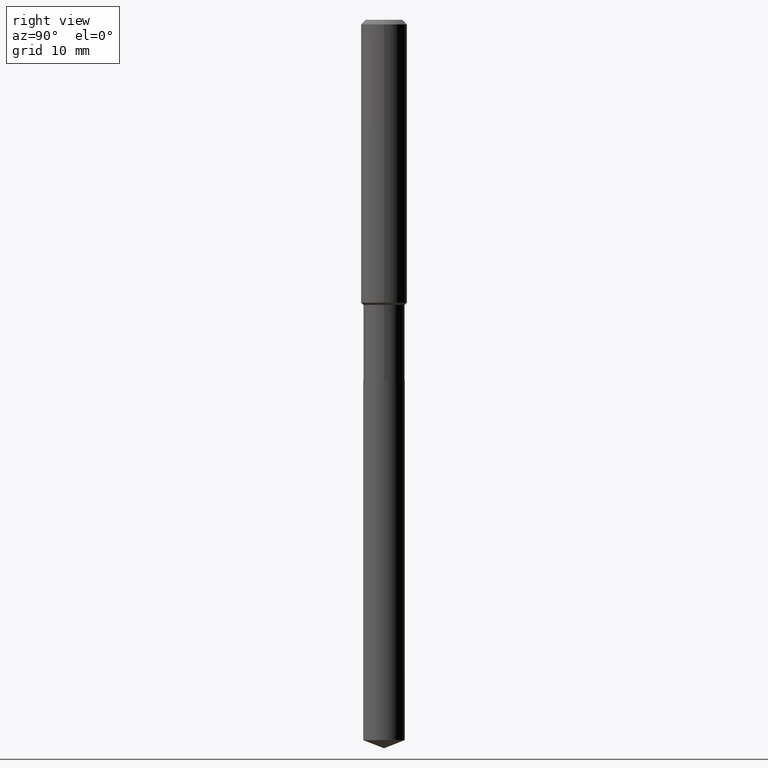
[diagram: clean part render]
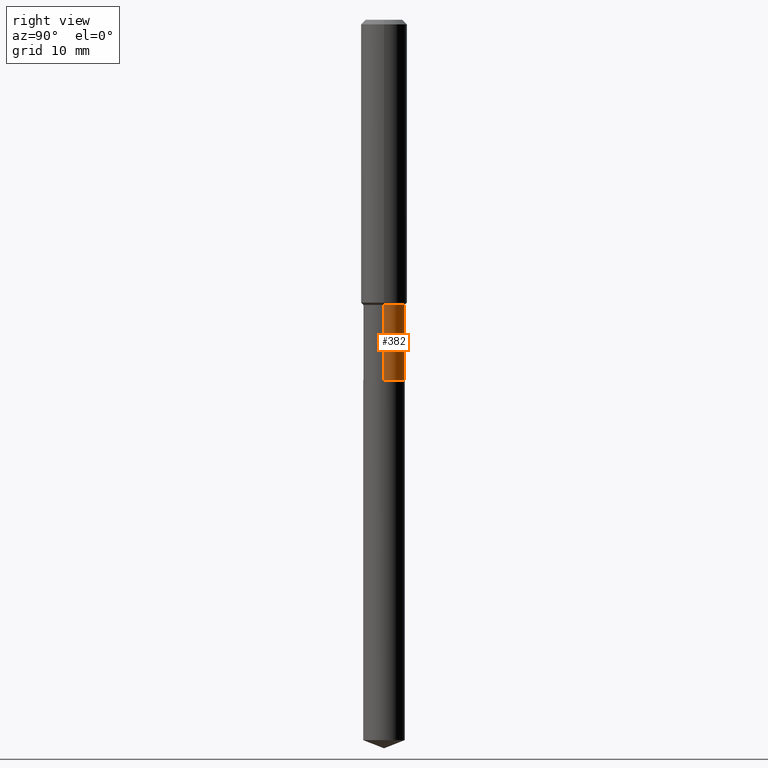
[diagram: same view with one face highlighted and labeled with its STEP entity id]
A machine part, right view. The second image highlights one B-rep face of the part: STEP entity #382.
In plain terms, the highlighted cylindrical surface (edge-blend (fillet) strip) has radius 2.7 mm, axis along (-0, 0, 1).
Its self-contained STEP definition (entity closure, byte-faithful):
#4 = VERTEX_POINT ( 'NONE', #208 ) ;
#9 = ORIENTED_EDGE ( 'NONE', *, *, #145, .F. ) ;
#34 = FACE_OUTER_BOUND ( 'NONE', #489, .T. ) ;
#44 = ORIENTED_EDGE ( 'NONE', *, *, #197, .T. ) ;
#76 = CYLINDRICAL_SURFACE ( 'NONE', #487, 0.1062999999999999640 ) ;
#123 = CARTESIAN_POINT ( 'NONE',  ( 0.1062999999999999640, -7.422889326380500401E-16, 5.183375912671078649E-30 ) ) ;
#142 = VERTEX_POINT ( 'NONE', #354 ) ;
#145 = EDGE_CURVE ( 'NONE', #142, #312, #384, .T. ) ;
#180 = ORIENTED_EDGE ( 'NONE', *, *, #361, .T. ) ;
#191 = DIRECTION ( 'NONE',  ( 1.000000000000000000, -6.982962677686268288E-15, 4.876176775795936353E-29 ) ) ;
#197 = EDGE_CURVE ( 'NONE', #306, #4, #408, .T. ) ;
#204 = DIRECTION ( 'NONE',  ( -2.445468806185136877E-29, 3.491481338843145188E-15, 1.000000000000000000 ) ) ;
#208 = CARTESIAN_POINT ( 'NONE',  ( -0.1062999999999999501, -5.030252224417050365E-15, -1.464200000000000390 ) ) ;
#217 = CARTESIAN_POINT ( 'NONE',  ( -0.1062999999999999640, 7.553069281129862415E-16, -5.228828000940962955E-30 ) ) ;
#219 = CARTESIAN_POINT ( 'NONE',  ( 0.1062999999999999501, -5.854515908972185504E-15, -1.464200000000000390 ) ) ;
#251 = DIRECTION ( 'NONE',  ( -2.445468806185136597E-29, 3.491481338843145583E-15, 1.000000000000000000 ) ) ;
#285 = DIRECTION ( 'NONE',  ( 1.000000000000000000, -6.982962677686269077E-15, 0.000000000000000000 ) ) ;
#288 = CARTESIAN_POINT ( 'NONE',  ( 3.580655426016278695E-29, -5.112226976334136155E-15, -1.464200000000000390 ) ) ;
#290 = AXIS2_PLACEMENT_3D ( 'NONE', #325, #471, #285 ) ;
#300 = EDGE_CURVE ( 'NONE', #312, #4, #303, .T. ) ;
#303 = CIRCLE ( 'NONE', #458, 0.1062999999999999501 ) ;
#306 = VERTEX_POINT ( 'NONE', #332 ) ;
#312 = VERTEX_POINT ( 'NONE', #219 ) ;
#320 = VECTOR ( 'NONE', #204, 39.37007874015748143 ) ;
#325 = CARTESIAN_POINT ( 'NONE',  ( 4.523872744561885153E-29, -6.458891328725936072E-15, -1.849900000000000322 ) ) ;
#330 = CIRCLE ( 'NONE', #290, 0.1063000000000000056 ) ;
#332 = CARTESIAN_POINT ( 'NONE',  ( -0.1062999999999999917, -5.030252224417050365E-15, -1.849900000000000322 ) ) ;
#341 = CARTESIAN_POINT ( 'NONE',  ( 0.000000000000000000, 0.000000000000000000, 0.000000000000000000 ) ) ;
#350 = VECTOR ( 'NONE', #363, 39.37007874015748143 ) ;
#354 = CARTESIAN_POINT ( 'NONE',  ( 0.1063000000000000056, -7.201180261363987000E-15, -1.849900000000000322 ) ) ;
#361 = EDGE_CURVE ( 'NONE', #142, #306, #330, .T. ) ;
#363 = DIRECTION ( 'NONE',  ( -2.445468806185136877E-29, 3.491481338843145188E-15, 1.000000000000000000 ) ) ;
#382 = ADVANCED_FACE ( 'NONE', ( #34 ), #76, .T. ) ;
#384 = LINE ( 'NONE', #123, #320 ) ;
#397 = DIRECTION ( 'NONE',  ( 1.000000000000000000, -6.982962677686264344E-15, 0.000000000000000000 ) ) ;
#408 = LINE ( 'NONE', #217, #350 ) ;
#424 = ORIENTED_EDGE ( 'NONE', *, *, #300, .F. ) ;
#452 = DIRECTION ( 'NONE',  ( -2.445468806185136597E-29, 3.491481338843145583E-15, 1.000000000000000000 ) ) ;
#458 = AXIS2_PLACEMENT_3D ( 'NONE', #288, #251, #397 ) ;
#471 = DIRECTION ( 'NONE',  ( -2.445468806185136597E-29, 3.491481338843145583E-15, 1.000000000000000000 ) ) ;
#487 = AXIS2_PLACEMENT_3D ( 'NONE', #341, #452, #191 ) ;
#489 = EDGE_LOOP ( 'NONE', ( #180, #44, #424, #9 ) ) ;